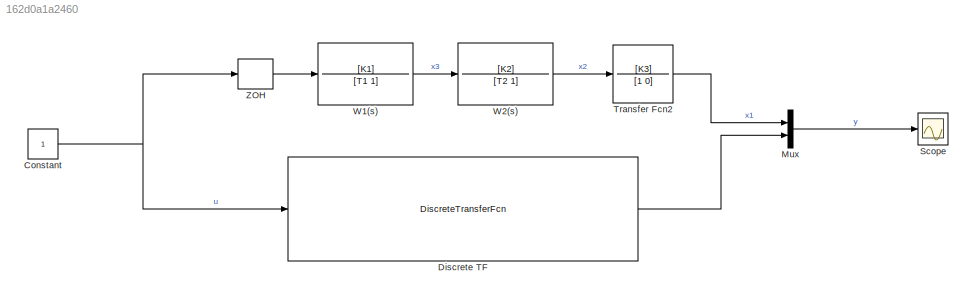
MODEL slx_162d0a1a2460
KIND model
CONFIG AbsTol = auto
CONFIG EnableMultiTasking = off
CONFIG FixedStep = T/1000
CONFIG MaxStep = auto
CONFIG MinStep = auto
CONFIG RelTol = 1e-3
CONFIG SampleTimeConstraint = Unconstrained
CONFIG SolverName = ode3
CONFIG StartTime = 0.0
CONFIG StopTime = Tmdl
BLOCK [Constant] Constant
BLOCK [DiscreteTransferFcn] Discrete TF
  Denominator = [1 -2.8972 2.7971 -0.8999]
  InputPortMap = u0
  Numerator = [0.0003 0.0010 0.0003]
  SampleTime = T
BLOCK [Mux] Mux
  DisplayOption = bar
  Inputs = 2
BLOCK [Scope] Scope
  Floating = off
  NumInputPorts = 1
  ScopeSpecificationString = Simulink.scopes.TimeScopeBlockCfg('CurrentConfiguration', extmgr.ConfigurationSet(extmgr.Configuration('Core','General UI',true),extmgr.Configuration('Core','Source UI',true),extmgr.Configuration('Sources','WiredSimulink',true,'DataLogging',true,'DataLoggingVariableName','y','DataLoggingSaveFormat','StructureWithTime'),extmgr.Configuration('Visuals','Time Domain',true,'SerializedDisplays',{struct(...<+1485ch>
BLOCK [TransferFcn] Transfer Fcn2
  Denominator = [1 0]
  Numerator = [K3]
BLOCK [TransferFcn] W1(s)
  Denominator = [T1 1]
  Numerator = [K1]
BLOCK [TransferFcn] W2(s)
  Denominator = [T2 1]
  Numerator = [K2]
BLOCK [ZeroOrderHold] ZOH
  SampleTime = -1
NET Constant:1 -> Discrete TF:1, ZOH:1
LINE Discrete TF:1 -> Mux:2
LINE Mux:1 -> Scope:1
LINE Transfer Fcn2:1 -> Mux:1
LINE W1(s):1 -> W2(s):1
LINE W2(s):1 -> Transfer Fcn2:1
LINE ZOH:1 -> W1(s):1
note: NET lines group one-source signal fan-out (src -> all destinations, sorted); 1:1 wires keep LINE
